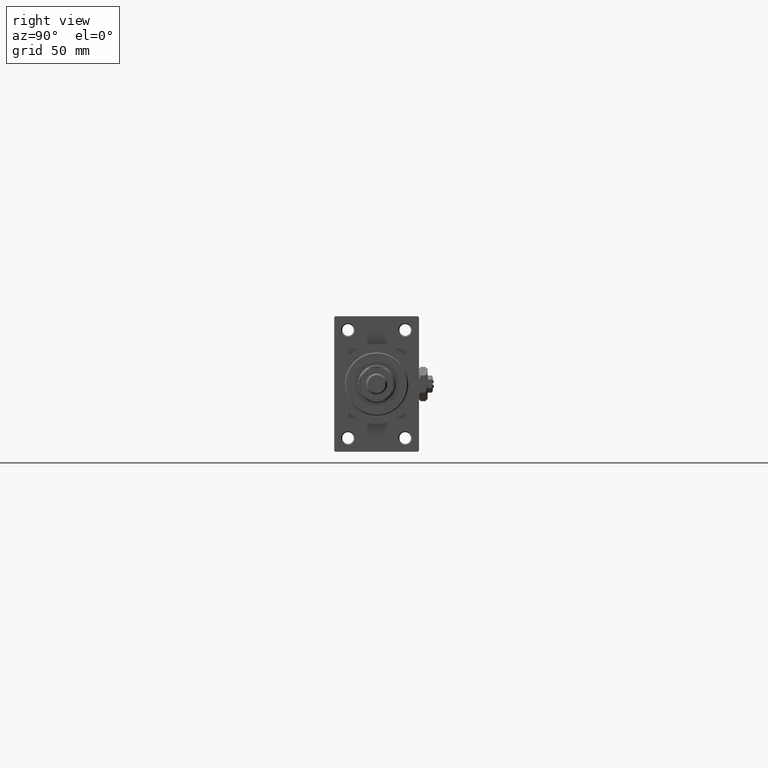
[diagram: clean part render]
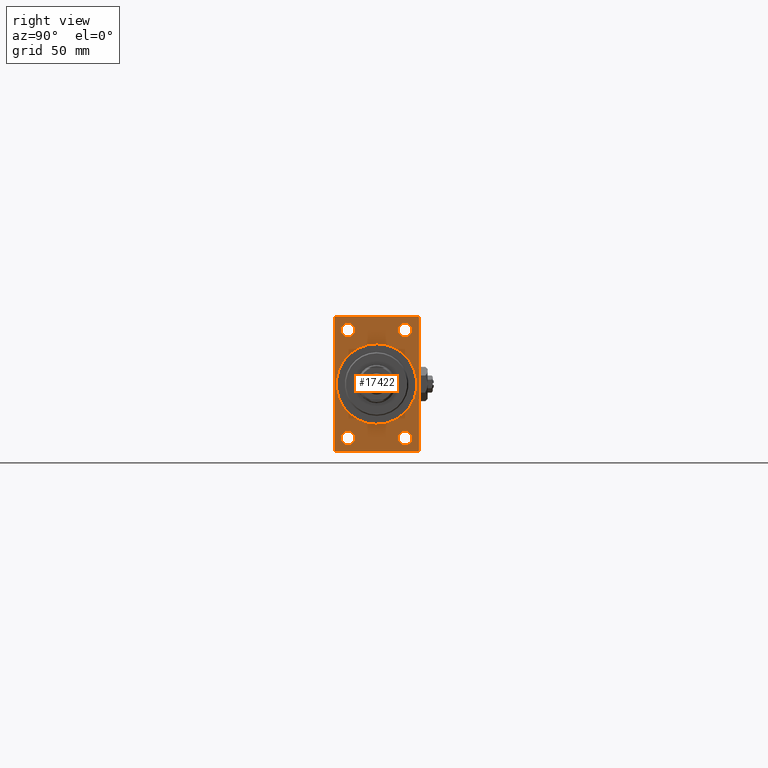
[diagram: same view with one face highlighted and labeled with its STEP entity id]
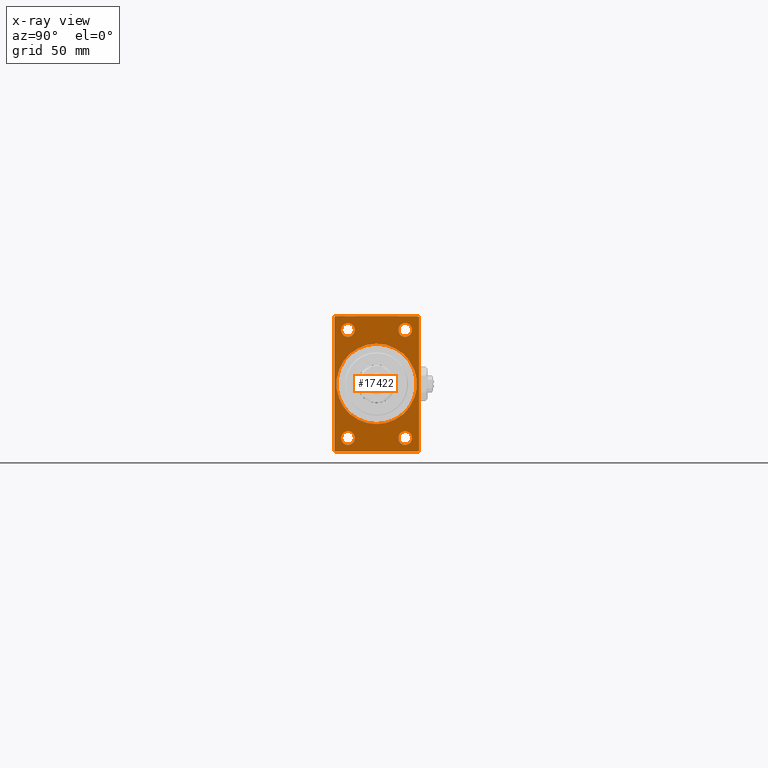
[diagram: x-ray of the same camera — body ghosted, the highlighted face saturated]
A machine part, right view. The second image highlights one B-rep face of the part: STEP entity #17422.
The next image is the same camera in x-ray: the body ghosted, the highlighted face saturated — about 0% of this face is hidden behind the body in this view.
In plain terms, the highlighted planar face has unit normal (-1, 0, 0).
Its self-contained STEP definition (entity closure, byte-faithful):
#247 = LINE ( 'NONE', #34757, #13110 ) ;
#442 = CARTESIAN_POINT ( 'NONE',  ( 289.0000000000000000, -20.00000000000000000, -31.49999999999997868 ) ) ;
#742 = VERTEX_POINT ( 'NONE', #38673 ) ;
#971 = VERTEX_POINT ( 'NONE', #27075 ) ;
#1346 = DIRECTION ( 'NONE',  ( -1.000000000000000000, -0.000000000000000000, -0.000000000000000000 ) ) ;
#1834 = AXIS2_PLACEMENT_3D ( 'NONE', #41970, #45699, #29946 ) ;
#2117 = ORIENTED_EDGE ( 'NONE', *, *, #4295, .T. ) ;
#2920 = EDGE_LOOP ( 'NONE', ( #16265, #21400 ) ) ;
#3412 = VERTEX_POINT ( 'NONE', #48174 ) ;
#3484 = AXIS2_PLACEMENT_3D ( 'NONE', #27412, #19908, #35159 ) ;
#3851 = ORIENTED_EDGE ( 'NONE', *, *, #13736, .T. ) ;
#4295 = EDGE_CURVE ( 'NONE', #19220, #48767, #21047, .T. ) ;
#4679 = CARTESIAN_POINT ( 'NONE',  ( 289.0000000000000000, 0.000000000000000000, 19.00000000000000000 ) ) ;
#4792 = CIRCLE ( 'NONE', #17583, 3.250000000000030642 ) ;
#5757 = VECTOR ( 'NONE', #9703, 1000.000000000000000 ) ;
#6052 = DIRECTION ( 'NONE',  ( -0.000000000000000000, 0.7071067811865474617, 0.7071067811865474617 ) ) ;
#6082 = CARTESIAN_POINT ( 'NONE',  ( 289.0000000000000000, -13.50000000000000178, 25.50000000000000355 ) ) ;
#7226 = LINE ( 'NONE', #21976, #27898 ) ;
#7330 = EDGE_CURVE ( 'NONE', #742, #17991, #42270, .T. ) ;
#7389 = CARTESIAN_POINT ( 'NONE',  ( 289.0000000000000000, 19.50000000000002842, -32.00000000000000000 ) ) ;
#7573 = ORIENTED_EDGE ( 'NONE', *, *, #37938, .F. ) ;
#7591 = EDGE_CURVE ( 'NONE', #28376, #33936, #7226, .T. ) ;
#7916 = FACE_BOUND ( 'NONE', #15809, .T. ) ;
#7939 = AXIS2_PLACEMENT_3D ( 'NONE', #8870, #1346, #19865 ) ;
#8385 = EDGE_LOOP ( 'NONE', ( #23057, #36556, #9566, #8519, #7573, #2117, #48070, #42232 ) ) ;
#8422 = CARTESIAN_POINT ( 'NONE',  ( 289.0000000000000000, 13.49999999999999822, 22.24999999999997513 ) ) ;
#8519 = ORIENTED_EDGE ( 'NONE', *, *, #49288, .T. ) ;
#8562 = CARTESIAN_POINT ( 'NONE',  ( 289.0000000000000000, 19.50000000000000000, 32.00000000000000000 ) ) ;
#8568 = EDGE_CURVE ( 'NONE', #42898, #9257, #14333, .T. ) ;
#8870 = CARTESIAN_POINT ( 'NONE',  ( 289.0000000000000000, 13.49999999999999822, 25.50000000000000355 ) ) ;
#9257 = VERTEX_POINT ( 'NONE', #24513 ) ;
#9349 = CARTESIAN_POINT ( 'NONE',  ( 289.0000000000000000, -13.50000000000000533, -28.75000000000002487 ) ) ;
#9418 = DIRECTION ( 'NONE',  ( 1.000000000000000000, 0.000000000000000000, 0.000000000000000000 ) ) ;
#9566 = ORIENTED_EDGE ( 'NONE', *, *, #20460, .F. ) ;
#9703 = DIRECTION ( 'NONE',  ( 0.000000000000000000, 0.000000000000000000, -1.000000000000000000 ) ) ;
#9724 = VERTEX_POINT ( 'NONE', #25180 ) ;
#10422 = ORIENTED_EDGE ( 'NONE', *, *, #33095, .T. ) ;
#10935 = DIRECTION ( 'NONE',  ( 0.000000000000000000, 0.000000000000000000, 1.000000000000000000 ) ) ;
#11291 = DIRECTION ( 'NONE',  ( -1.000000000000000000, -0.000000000000000000, -0.000000000000000000 ) ) ;
#12728 = AXIS2_PLACEMENT_3D ( 'NONE', #14689, #37207, #10935 ) ;
#13110 = VECTOR ( 'NONE', #34026, 1000.000000000000000 ) ;
#13501 = DIRECTION ( 'NONE',  ( -0.000000000000000000, -0.7071067811865474617, -0.7071067811865474617 ) ) ;
#13539 = CIRCLE ( 'NONE', #7939, 3.250000000000030642 ) ;
#13556 = CARTESIAN_POINT ( 'NONE',  ( 289.0000000000000000, -19.49999999999997158, -32.00000000000000000 ) ) ;
#13736 = EDGE_CURVE ( 'NONE', #9257, #42898, #24097, .T. ) ;
#14333 = CIRCLE ( 'NONE', #12728, 3.250000000000030642 ) ;
#14689 = CARTESIAN_POINT ( 'NONE',  ( 289.0000000000000000, -13.50000000000000533, -25.49999999999999645 ) ) ;
#14999 = EDGE_CURVE ( 'NONE', #24439, #971, #28925, .T. ) ;
#15298 = DIRECTION ( 'NONE',  ( 0.000000000000000000, 0.000000000000000000, 1.000000000000000000 ) ) ;
#15545 = AXIS2_PLACEMENT_3D ( 'NONE', #25295, #40585, #31023 ) ;
#15673 = FACE_BOUND ( 'NONE', #20372, .T. ) ;
#15809 = EDGE_LOOP ( 'NONE', ( #39035, #42925 ) ) ;
#16050 = VERTEX_POINT ( 'NONE', #13556 ) ;
#16265 = ORIENTED_EDGE ( 'NONE', *, *, #14999, .T. ) ;
#16821 = LINE ( 'NONE', #31069, #19608 ) ;
#16949 = CARTESIAN_POINT ( 'NONE',  ( 289.0000000000000000, 13.49999999999999822, 28.75000000000003553 ) ) ;
#17422 = ADVANCED_FACE ( 'NONE', ( #42202, #33694, #15673, #30433, #7916, #37972 ), #26427, .F. ) ;
#17478 = EDGE_CURVE ( 'NONE', #37106, #26099, #44972, .T. ) ;
#17583 = AXIS2_PLACEMENT_3D ( 'NONE', #6082, #44100, #44352 ) ;
#17946 = CIRCLE ( 'NONE', #15545, 3.250000000000030642 ) ;
#17954 = VECTOR ( 'NONE', #18217, 1000.000000000000000 ) ;
#17991 = VERTEX_POINT ( 'NONE', #21804 ) ;
#18217 = DIRECTION ( 'NONE',  ( 0.000000000000000000, -1.000000000000000000, 0.000000000000000000 ) ) ;
#18330 = ORIENTED_EDGE ( 'NONE', *, *, #8568, .T. ) ;
#19085 = ORIENTED_EDGE ( 'NONE', *, *, #17478, .T. ) ;
#19220 = VERTEX_POINT ( 'NONE', #45526 ) ;
#19531 = DIRECTION ( 'NONE',  ( 0.000000000000000000, 0.000000000000000000, 1.000000000000000000 ) ) ;
#19608 = VECTOR ( 'NONE', #46346, 1000.000000000000114 ) ;
#19865 = DIRECTION ( 'NONE',  ( 0.000000000000000000, 0.000000000000000000, 1.000000000000000000 ) ) ;
#19908 = DIRECTION ( 'NONE',  ( -1.000000000000000000, -0.000000000000000000, -0.000000000000000000 ) ) ;
#19934 = VERTEX_POINT ( 'NONE', #7389 ) ;
#20269 = CARTESIAN_POINT ( 'NONE',  ( 289.0000000000000000, 13.49999999999999822, -25.50000000000000000 ) ) ;
#20372 = EDGE_LOOP ( 'NONE', ( #32730, #36150 ) ) ;
#20460 = EDGE_CURVE ( 'NONE', #19934, #16050, #32481, .T. ) ;
#21047 = LINE ( 'NONE', #47576, #25502 ) ;
#21192 = LINE ( 'NONE', #43973, #5757 ) ;
#21400 = ORIENTED_EDGE ( 'NONE', *, *, #31474, .T. ) ;
#21656 = VERTEX_POINT ( 'NONE', #35191 ) ;
#21804 = CARTESIAN_POINT ( 'NONE',  ( 289.0000000000000000, 13.49999999999999822, -22.24999999999996803 ) ) ;
#21976 = CARTESIAN_POINT ( 'NONE',  ( 289.0000000000000000, -20.00000000000000000, 31.99999999999999289 ) ) ;
#22282 = AXIS2_PLACEMENT_3D ( 'NONE', #43690, #9418, #43442 ) ;
#22462 = EDGE_LOOP ( 'NONE', ( #18330, #3851 ) ) ;
#23041 = EDGE_CURVE ( 'NONE', #48767, #9724, #247, .T. ) ;
#23057 = ORIENTED_EDGE ( 'NONE', *, *, #7591, .T. ) ;
#23873 = CIRCLE ( 'NONE', #22282, 19.00000000000000000 ) ;
#24097 = CIRCLE ( 'NONE', #28071, 3.250000000000030642 ) ;
#24439 = VERTEX_POINT ( 'NONE', #34318 ) ;
#24513 = CARTESIAN_POINT ( 'NONE',  ( 289.0000000000000000, -13.50000000000000533, -22.24999999999996447 ) ) ;
#24792 = LINE ( 'NONE', #33298, #39591 ) ;
#25008 = CARTESIAN_POINT ( 'NONE',  ( 289.0000000000000000, -13.50000000000000533, -25.49999999999999645 ) ) ;
#25180 = CARTESIAN_POINT ( 'NONE',  ( 289.0000000000000000, -19.50000000000000000, 31.99999999999999289 ) ) ;
#25295 = CARTESIAN_POINT ( 'NONE',  ( 289.0000000000000000, 13.49999999999999822, -25.50000000000000000 ) ) ;
#25502 = VECTOR ( 'NONE', #36315, 1000.000000000000000 ) ;
#26099 = VERTEX_POINT ( 'NONE', #8422 ) ;
#26427 = PLANE ( 'NONE',  #1834 ) ;
#26786 = DIRECTION ( 'NONE',  ( -1.000000000000000000, -0.000000000000000000, -0.000000000000000000 ) ) ;
#27075 = CARTESIAN_POINT ( 'NONE',  ( 289.0000000000000000, -13.50000000000000178, 28.75000000000003197 ) ) ;
#27412 = CARTESIAN_POINT ( 'NONE',  ( 289.0000000000000000, 13.49999999999999822, 25.50000000000000355 ) ) ;
#27898 = VECTOR ( 'NONE', #29480, 1000.000000000000000 ) ;
#28071 = AXIS2_PLACEMENT_3D ( 'NONE', #25008, #36533, #36779 ) ;
#28376 = VERTEX_POINT ( 'NONE', #33709 ) ;
#28582 = DIRECTION ( 'NONE',  ( 1.000000000000000000, 0.000000000000000000, 0.000000000000000000 ) ) ;
#28925 = CIRCLE ( 'NONE', #30549, 3.250000000000030642 ) ;
#29480 = DIRECTION ( 'NONE',  ( 0.000000000000000000, 0.000000000000000000, -1.000000000000000000 ) ) ;
#29946 = DIRECTION ( 'NONE',  ( -0.000000000000000000, 0.000000000000000000, 1.000000000000000000 ) ) ;
#29950 = EDGE_CURVE ( 'NONE', #9724, #28376, #36763, .T. ) ;
#30433 = FACE_BOUND ( 'NONE', #48963, .T. ) ;
#30549 = AXIS2_PLACEMENT_3D ( 'NONE', #42300, #11291, #19531 ) ;
#31023 = DIRECTION ( 'NONE',  ( 0.000000000000000000, 0.000000000000000000, 1.000000000000000000 ) ) ;
#31069 = CARTESIAN_POINT ( 'NONE',  ( 289.0000000000000000, -19.49999999999997158, -32.00000000000000000 ) ) ;
#31352 = AXIS2_PLACEMENT_3D ( 'NONE', #46885, #28582, #36107 ) ;
#31474 = EDGE_CURVE ( 'NONE', #971, #24439, #4792, .T. ) ;
#32027 = EDGE_CURVE ( 'NONE', #34044, #21656, #23873, .T. ) ;
#32481 = LINE ( 'NONE', #44732, #17954 ) ;
#32730 = ORIENTED_EDGE ( 'NONE', *, *, #7330, .T. ) ;
#33095 = EDGE_CURVE ( 'NONE', #26099, #37106, #13539, .T. ) ;
#33298 = CARTESIAN_POINT ( 'NONE',  ( 289.0000000000000000, 20.00000000000000000, -31.50000000000002842 ) ) ;
#33694 = FACE_BOUND ( 'NONE', #22462, .T. ) ;
#33709 = CARTESIAN_POINT ( 'NONE',  ( 289.0000000000000000, -20.00000000000000000, 31.49999999999999289 ) ) ;
#33936 = VERTEX_POINT ( 'NONE', #442 ) ;
#34026 = DIRECTION ( 'NONE',  ( 0.000000000000000000, -1.000000000000000000, -1.734723475976807094E-16 ) ) ;
#34044 = VERTEX_POINT ( 'NONE', #4679 ) ;
#34318 = CARTESIAN_POINT ( 'NONE',  ( 289.0000000000000000, -13.50000000000000178, 22.24999999999997158 ) ) ;
#34328 = VECTOR ( 'NONE', #13501, 1000.000000000000114 ) ;
#34757 = CARTESIAN_POINT ( 'NONE',  ( 289.0000000000000000, 20.00000000000000000, 32.00000000000000000 ) ) ;
#35159 = DIRECTION ( 'NONE',  ( 0.000000000000000000, 0.000000000000000000, 1.000000000000000000 ) ) ;
#35191 = CARTESIAN_POINT ( 'NONE',  ( 289.0000000000000000, 2.326828918379970970E-15, -19.00000000000000000 ) ) ;
#36107 = DIRECTION ( 'NONE',  ( 0.000000000000000000, 0.000000000000000000, -1.000000000000000000 ) ) ;
#36150 = ORIENTED_EDGE ( 'NONE', *, *, #45020, .T. ) ;
#36274 = CARTESIAN_POINT ( 'NONE',  ( 289.0000000000000000, -20.00000000000000000, 31.49999999999999289 ) ) ;
#36315 = DIRECTION ( 'NONE',  ( 0.000000000000000000, -0.7071067811865671127, 0.7071067811865279218 ) ) ;
#36533 = DIRECTION ( 'NONE',  ( -1.000000000000000000, -0.000000000000000000, -0.000000000000000000 ) ) ;
#36556 = ORIENTED_EDGE ( 'NONE', *, *, #49231, .T. ) ;
#36763 = LINE ( 'NONE', #36274, #34328 ) ;
#36779 = DIRECTION ( 'NONE',  ( 0.000000000000000000, 0.000000000000000000, 1.000000000000000000 ) ) ;
#37106 = VERTEX_POINT ( 'NONE', #16949 ) ;
#37207 = DIRECTION ( 'NONE',  ( -1.000000000000000000, -0.000000000000000000, -0.000000000000000000 ) ) ;
#37475 = AXIS2_PLACEMENT_3D ( 'NONE', #20269, #26786, #15298 ) ;
#37938 = EDGE_CURVE ( 'NONE', #19220, #3412, #21192, .T. ) ;
#37972 = FACE_OUTER_BOUND ( 'NONE', #8385, .T. ) ;
#38673 = CARTESIAN_POINT ( 'NONE',  ( 289.0000000000000000, 13.49999999999999822, -28.75000000000002842 ) ) ;
#39035 = ORIENTED_EDGE ( 'NONE', *, *, #32027, .F. ) ;
#39591 = VECTOR ( 'NONE', #6052, 1000.000000000000114 ) ;
#40298 = EDGE_CURVE ( 'NONE', #21656, #34044, #44967, .T. ) ;
#40585 = DIRECTION ( 'NONE',  ( -1.000000000000000000, -0.000000000000000000, -0.000000000000000000 ) ) ;
#41970 = CARTESIAN_POINT ( 'NONE',  ( 289.0000000000000000, 0.000000000000000000, 0.000000000000000000 ) ) ;
#42202 = FACE_BOUND ( 'NONE', #2920, .T. ) ;
#42232 = ORIENTED_EDGE ( 'NONE', *, *, #29950, .T. ) ;
#42270 = CIRCLE ( 'NONE', #37475, 3.250000000000030642 ) ;
#42300 = CARTESIAN_POINT ( 'NONE',  ( 289.0000000000000000, -13.50000000000000178, 25.50000000000000355 ) ) ;
#42898 = VERTEX_POINT ( 'NONE', #9349 ) ;
#42925 = ORIENTED_EDGE ( 'NONE', *, *, #40298, .F. ) ;
#43442 = DIRECTION ( 'NONE',  ( 0.000000000000000000, 0.000000000000000000, -1.000000000000000000 ) ) ;
#43690 = CARTESIAN_POINT ( 'NONE',  ( 289.0000000000000000, 0.000000000000000000, 0.000000000000000000 ) ) ;
#43973 = CARTESIAN_POINT ( 'NONE',  ( 289.0000000000000000, 20.00000000000000000, 32.00000000000000000 ) ) ;
#44100 = DIRECTION ( 'NONE',  ( -1.000000000000000000, -0.000000000000000000, -0.000000000000000000 ) ) ;
#44352 = DIRECTION ( 'NONE',  ( 0.000000000000000000, 0.000000000000000000, 1.000000000000000000 ) ) ;
#44732 = CARTESIAN_POINT ( 'NONE',  ( 289.0000000000000000, 20.00000000000000000, -32.00000000000000000 ) ) ;
#44967 = CIRCLE ( 'NONE', #31352, 19.00000000000000000 ) ;
#44972 = CIRCLE ( 'NONE', #3484, 3.250000000000030642 ) ;
#45020 = EDGE_CURVE ( 'NONE', #17991, #742, #17946, .T. ) ;
#45526 = CARTESIAN_POINT ( 'NONE',  ( 289.0000000000000000, 20.00000000000000000, 31.50000000000002842 ) ) ;
#45699 = DIRECTION ( 'NONE',  ( -1.000000000000000000, 0.000000000000000000, -0.000000000000000000 ) ) ;
#46346 = DIRECTION ( 'NONE',  ( 0.000000000000000000, 0.7071067811865524577, -0.7071067811865425767 ) ) ;
#46885 = CARTESIAN_POINT ( 'NONE',  ( 289.0000000000000000, 0.000000000000000000, 0.000000000000000000 ) ) ;
#47576 = CARTESIAN_POINT ( 'NONE',  ( 289.0000000000000000, 19.50000000000000000, 32.00000000000000000 ) ) ;
#48070 = ORIENTED_EDGE ( 'NONE', *, *, #23041, .T. ) ;
#48174 = CARTESIAN_POINT ( 'NONE',  ( 289.0000000000000000, 20.00000000000000000, -31.50000000000002842 ) ) ;
#48767 = VERTEX_POINT ( 'NONE', #8562 ) ;
#48963 = EDGE_LOOP ( 'NONE', ( #10422, #19085 ) ) ;
#49231 = EDGE_CURVE ( 'NONE', #33936, #16050, #16821, .T. ) ;
#49288 = EDGE_CURVE ( 'NONE', #19934, #3412, #24792, .T. ) ;